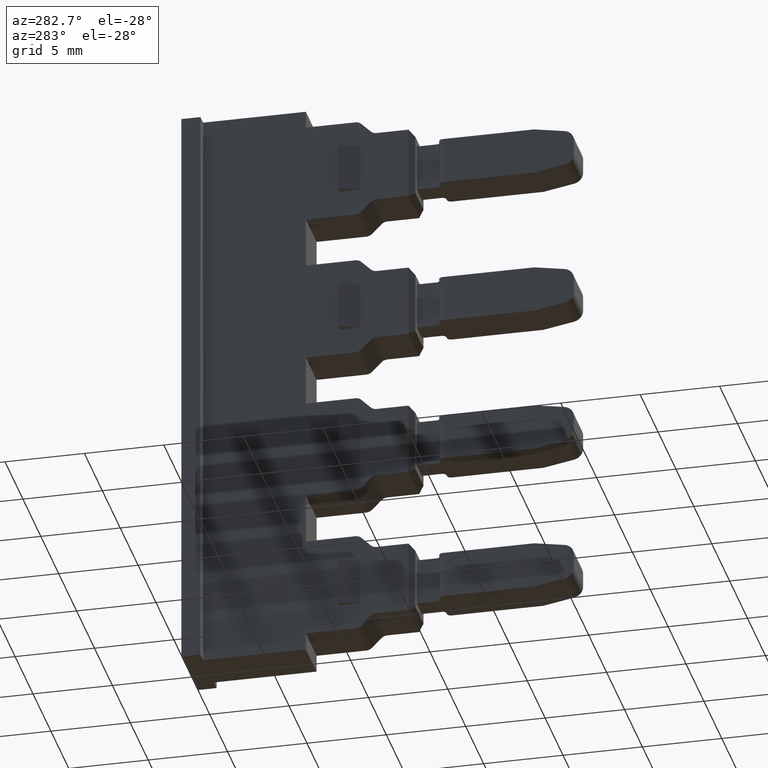
[diagram: clean part render]
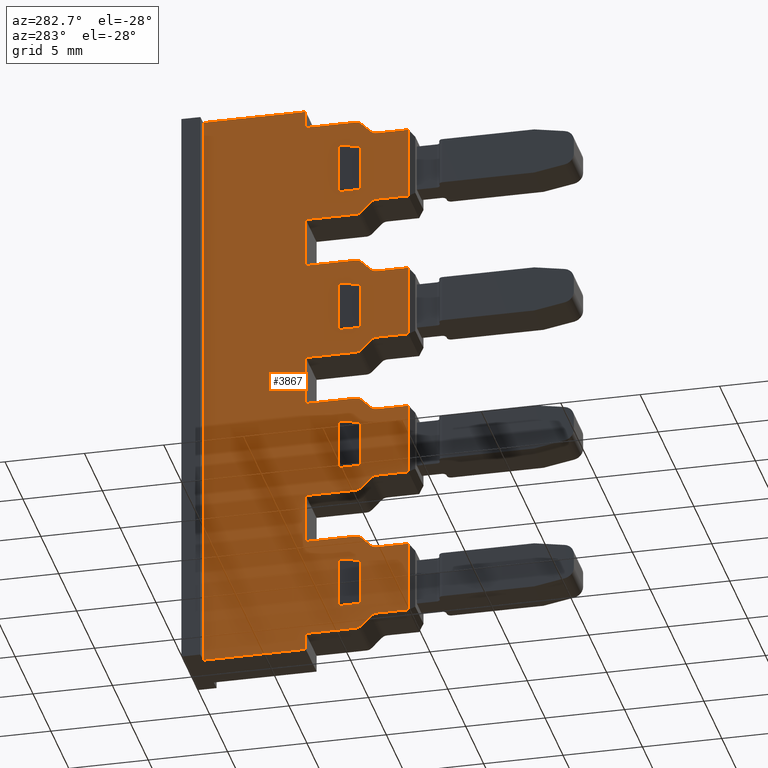
[diagram: same view with one face highlighted and labeled with its STEP entity id]
A machine part, auxiliary view. The second image highlights one B-rep face of the part: STEP entity #3867.
In plain terms, the highlighted planar face has unit normal (1, 0, 0).
Its self-contained STEP definition (entity closure, byte-faithful):
#417 = ORIENTED_EDGE ( 'NONE', *, *, #3866, .F. ) ;
#446 = ORIENTED_EDGE ( 'NONE', *, *, #3864, .F. ) ;
#459 = ORIENTED_EDGE ( 'NONE', *, *, #3886, .F. ) ;
#462 = ORIENTED_EDGE ( 'NONE', *, *, #3850, .F. ) ;
#465 = ORIENTED_EDGE ( 'NONE', *, *, #3891, .T. ) ;
#467 = ORIENTED_EDGE ( 'NONE', *, *, #3387, .T. ) ;
#468 = ORIENTED_EDGE ( 'NONE', *, *, #3436, .F. ) ;
#469 = ORIENTED_EDGE ( 'NONE', *, *, #3462, .F. ) ;
#470 = ORIENTED_EDGE ( 'NONE', *, *, #3375, .T. ) ;
#471 = ORIENTED_EDGE ( 'NONE', *, *, #3848, .F. ) ;
#472 = ORIENTED_EDGE ( 'NONE', *, *, #3391, .T. ) ;
#473 = ORIENTED_EDGE ( 'NONE', *, *, #3461, .T. ) ;
#474 = ORIENTED_EDGE ( 'NONE', *, *, #3402, .F. ) ;
#476 = EDGE_LOOP ( 'NONE', ( #459, #417, #446, #462, #465, #2296, #2274, #2318, #2285, #2319, #2303, #2314, #471, #2304, #2298, #2280, #473, #2321, #2329, #2309, #2326, #468, #2289, #2312, #2306, #2302, #2316, #2272, #2308, #2286, #2269, #474, #2291, #2287, #2324, #2275, #2284, #2278, #2323, #2297, #2295, #2282, #2313, #2320, #2270, #2307, #2283, #2330, #2328, #2281, #2290, #2325 ) ) ;
#479 = EDGE_LOOP ( 'NONE', ( #2310, #2315, #2271, #2288 ) ) ;
#489 = EDGE_LOOP ( 'NONE', ( #2276, #2311, #467, #2305 ) ) ;
#492 = EDGE_LOOP ( 'NONE', ( #2292, #2322, #472, #469 ) ) ;
#497 = EDGE_LOOP ( 'NONE', ( #2317, #2327, #470, #2273 ) ) ;
#1468 = VERTEX_POINT ( 'NONE', #1832 ) ;
#1476 = VERTEX_POINT ( 'NONE', #1799 ) ;
#1478 = VERTEX_POINT ( 'NONE', #1795 ) ;
#1517 = VERTEX_POINT ( 'NONE', #1903 ) ;
#1518 = VERTEX_POINT ( 'NONE', #1873 ) ;
#1521 = VERTEX_POINT ( 'NONE', #1883 ) ;
#1522 = VERTEX_POINT ( 'NONE', #1846 ) ;
#1523 = VERTEX_POINT ( 'NONE', #1847 ) ;
#1524 = VERTEX_POINT ( 'NONE', #1855 ) ;
#1526 = VERTEX_POINT ( 'NONE', #1896 ) ;
#1527 = VERTEX_POINT ( 'NONE', #1851 ) ;
#1528 = VERTEX_POINT ( 'NONE', #1854 ) ;
#1529 = VERTEX_POINT ( 'NONE', #1861 ) ;
#1533 = VERTEX_POINT ( 'NONE', #1862 ) ;
#1534 = VERTEX_POINT ( 'NONE', #1863 ) ;
#1535 = VERTEX_POINT ( 'NONE', #1864 ) ;
#1536 = VERTEX_POINT ( 'NONE', #1859 ) ;
#1537 = VERTEX_POINT ( 'NONE', #1886 ) ;
#1541 = VERTEX_POINT ( 'NONE', #1865 ) ;
#1542 = VERTEX_POINT ( 'NONE', #1844 ) ;
#1544 = VERTEX_POINT ( 'NONE', #1890 ) ;
#1547 = VERTEX_POINT ( 'NONE', #1867 ) ;
#1549 = VERTEX_POINT ( 'NONE', #1887 ) ;
#1552 = VERTEX_POINT ( 'NONE', #1853 ) ;
#1554 = VERTEX_POINT ( 'NONE', #1895 ) ;
#1555 = VERTEX_POINT ( 'NONE', #1892 ) ;
#1557 = VERTEX_POINT ( 'NONE', #1857 ) ;
#1560 = VERTEX_POINT ( 'NONE', #1870 ) ;
#1561 = VERTEX_POINT ( 'NONE', #1904 ) ;
#1562 = VERTEX_POINT ( 'NONE', #1889 ) ;
#1567 = VERTEX_POINT ( 'NONE', #1893 ) ;
#1568 = VERTEX_POINT ( 'NONE', #1876 ) ;
#1572 = VERTEX_POINT ( 'NONE', #1897 ) ;
#1574 = VERTEX_POINT ( 'NONE', #1860 ) ;
#1575 = VERTEX_POINT ( 'NONE', #1877 ) ;
#1576 = VERTEX_POINT ( 'NONE', #1878 ) ;
#1577 = VERTEX_POINT ( 'NONE', #1901 ) ;
#1578 = VERTEX_POINT ( 'NONE', #1841 ) ;
#1584 = VERTEX_POINT ( 'NONE', #1939 ) ;
#1585 = VERTEX_POINT ( 'NONE', #1961 ) ;
#1589 = VERTEX_POINT ( 'NONE', #1940 ) ;
#1593 = VERTEX_POINT ( 'NONE', #1908 ) ;
#1595 = VERTEX_POINT ( 'NONE', #1929 ) ;
#1596 = VERTEX_POINT ( 'NONE', #1950 ) ;
#1597 = VERTEX_POINT ( 'NONE', #1928 ) ;
#1598 = VERTEX_POINT ( 'NONE', #1925 ) ;
#1599 = VERTEX_POINT ( 'NONE', #1920 ) ;
#1600 = VERTEX_POINT ( 'NONE', #1934 ) ;
#1601 = VERTEX_POINT ( 'NONE', #1913 ) ;
#1603 = VERTEX_POINT ( 'NONE', #1957 ) ;
#1607 = VERTEX_POINT ( 'NONE', #1935 ) ;
#1608 = VERTEX_POINT ( 'NONE', #1968 ) ;
#1609 = VERTEX_POINT ( 'NONE', #1953 ) ;
#1612 = VERTEX_POINT ( 'NONE', #1914 ) ;
#1613 = VERTEX_POINT ( 'NONE', #1943 ) ;
#1614 = VERTEX_POINT ( 'NONE', #1949 ) ;
#1615 = VERTEX_POINT ( 'NONE', #1936 ) ;
#1621 = VERTEX_POINT ( 'NONE', #1922 ) ;
#1624 = VERTEX_POINT ( 'NONE', #1941 ) ;
#1625 = VERTEX_POINT ( 'NONE', #1916 ) ;
#1626 = VERTEX_POINT ( 'NONE', #1952 ) ;
#1627 = VERTEX_POINT ( 'NONE', #1911 ) ;
#1630 = VERTEX_POINT ( 'NONE', #1965 ) ;
#1632 = VERTEX_POINT ( 'NONE', #1966 ) ;
#1635 = VERTEX_POINT ( 'NONE', #1926 ) ;
#1637 = VERTEX_POINT ( 'NONE', #1921 ) ;
#1638 = VERTEX_POINT ( 'NONE', #1933 ) ;
#1641 = VERTEX_POINT ( 'NONE', #1947 ) ;
#1795 = CARTESIAN_POINT ( 'NONE',  ( 109.2279176201151900, 242.6435672046340000, 38.30663662139569700 ) ) ;
#1799 = CARTESIAN_POINT ( 'NONE',  ( 109.2279176201152500, 249.1101602475988600, 18.00663662139567500 ) ) ;
#1832 = CARTESIAN_POINT ( 'NONE',  ( 109.2279176201152900, 242.6435672046341100, 25.50663662139554300 ) ) ;
#1841 = CARTESIAN_POINT ( 'NONE',  ( 109.2279176201151600, 239.5101602475982400, 54.30663662139580300 ) ) ;
#1844 = CARTESIAN_POINT ( 'NONE',  ( 109.2279176201153300, 239.5101602475985800, 28.70663662139571300 ) ) ;
#1846 = CARTESIAN_POINT ( 'NONE',  ( 109.2279176201152100, 239.1566068570052200, 48.05308323080263500 ) ) ;
#1847 = CARTESIAN_POINT ( 'NONE',  ( 109.2279176201153800, 238.5495000758188300, 24.75308323080238200 ) ) ;
#1851 = CARTESIAN_POINT ( 'NONE',  ( 109.2279176201152800, 239.2101602475978300, 40.00663662139501800 ) ) ;
#1853 = CARTESIAN_POINT ( 'NONE',  ( 109.2279176201153600, 238.5495000758190000, 29.46019001198884600 ) ) ;
#1854 = CARTESIAN_POINT ( 'NONE',  ( 109.2279176201154300, 236.1815789079984100, 24.60663662139568300 ) ) ;
#1855 = CARTESIAN_POINT ( 'NONE',  ( 109.2279176201153500, 239.1566068570052700, 28.85308323080246900 ) ) ;
#1857 = CARTESIAN_POINT ( 'NONE',  ( 109.2279176201152900, 239.5101602475982900, 35.10663662139557300 ) ) ;
#1859 = CARTESIAN_POINT ( 'NONE',  ( 109.2279176201150800, 242.6435672046339700, 54.30663662139581000 ) ) ;
#1860 = CARTESIAN_POINT ( 'NONE',  ( 109.2279176201153300, 239.2101602475987600, 33.40663662139502300 ) ) ;
#1861 = CARTESIAN_POINT ( 'NONE',  ( 109.2279176201152800, 238.1959466852255800, 43.80663662139576100 ) ) ;
#1862 = CARTESIAN_POINT ( 'NONE',  ( 109.2279176201154100, 238.1959466852256900, 24.60663662139576500 ) ) ;
#1863 = CARTESIAN_POINT ( 'NONE',  ( 109.2279176201152900, 239.1566068570052400, 34.96019001198884300 ) ) ;
#1864 = CARTESIAN_POINT ( 'NONE',  ( 109.2279176201151600, 240.5101602475986600, 49.60663662139501200 ) ) ;
#1865 = CARTESIAN_POINT ( 'NONE',  ( 109.2279176201153300, 238.1959466852256400, 34.20663662139576600 ) ) ;
#1867 = CARTESIAN_POINT ( 'NONE',  ( 109.2279176201153100, 238.5495000758189400, 39.06019001198884400 ) ) ;
#1870 = CARTESIAN_POINT ( 'NONE',  ( 109.2279176201151200, 242.6435672046340000, 47.90663662139586200 ) ) ;
#1873 = CARTESIAN_POINT ( 'NONE',  ( 109.2279176201149700, 249.1101602475987400, 55.40663662139576200 ) ) ;
#1876 = CARTESIAN_POINT ( 'NONE',  ( 109.2279176201153300, 236.1815789079985000, 39.20663662139569500 ) ) ;
#1877 = CARTESIAN_POINT ( 'NONE',  ( 109.2279176201153200, 238.1959466852256400, 39.20663662139563900 ) ) ;
#1878 = CARTESIAN_POINT ( 'NONE',  ( 109.2279176201152400, 240.5101602475986900, 40.00663662139501800 ) ) ;
#1883 = CARTESIAN_POINT ( 'NONE',  ( 109.2279176201154200, 239.1566068570053300, 19.25308323080246700 ) ) ;
#1886 = CARTESIAN_POINT ( 'NONE',  ( 109.2279176201153200, 238.5495000758187700, 34.35308323080238300 ) ) ;
#1887 = CARTESIAN_POINT ( 'NONE',  ( 109.2279176201152600, 242.6435672046340500, 28.70663662139569900 ) ) ;
#1889 = CARTESIAN_POINT ( 'NONE',  ( 109.2279176201151900, 238.1959466852255200, 53.40663662139598200 ) ) ;
#1890 = CARTESIAN_POINT ( 'NONE',  ( 109.2279176201153800, 238.1959466852256900, 29.60663662139564100 ) ) ;
#1892 = CARTESIAN_POINT ( 'NONE',  ( 109.2279176201153600, 236.1815789079983600, 34.20663662139568100 ) ) ;
#1893 = CARTESIAN_POINT ( 'NONE',  ( 109.2279176201154100, 236.1815789079985600, 29.60663662139569800 ) ) ;
#1895 = CARTESIAN_POINT ( 'NONE',  ( 109.2279176201152800, 239.5101602475985200, 38.30663662139571100 ) ) ;
#1896 = CARTESIAN_POINT ( 'NONE',  ( 109.2279176201150800, 240.5101602475987500, 33.40663662139502300 ) ) ;
#1897 = CARTESIAN_POINT ( 'NONE',  ( 109.2279176201152100, 239.2101602475978800, 49.60663662139501200 ) ) ;
#1901 = CARTESIAN_POINT ( 'NONE',  ( 109.2279176201152500, 238.5495000758187100, 43.95308323080237800 ) ) ;
#1903 = CARTESIAN_POINT ( 'NONE',  ( 109.2279176201152900, 239.1566068570052200, 38.45308323080247000 ) ) ;
#1904 = CARTESIAN_POINT ( 'NONE',  ( 109.2279176201152200, 242.6435672046340500, 35.10663662139554500 ) ) ;
#1908 = CARTESIAN_POINT ( 'NONE',  ( 109.2279176201152600, 239.2101602475987100, 43.00663662139501800 ) ) ;
#1911 = CARTESIAN_POINT ( 'NONE',  ( 109.2279176201153500, 239.1566068570053000, 25.36019001198884100 ) ) ;
#1913 = CARTESIAN_POINT ( 'NONE',  ( 109.2279176201153900, 239.2101602475988200, 23.80663662139502200 ) ) ;
#1914 = CARTESIAN_POINT ( 'NONE',  ( 109.2279176201152400, 238.1959466852255800, 48.80663662139584600 ) ) ;
#1916 = CARTESIAN_POINT ( 'NONE',  ( 109.2279176201151900, 238.5495000758186000, 53.55308323080258500 ) ) ;
#1920 = CARTESIAN_POINT ( 'NONE',  ( 109.2279176201154300, 238.5495000758190500, 19.86019001198884500 ) ) ;
#1921 = CARTESIAN_POINT ( 'NONE',  ( 109.2279176201153600, 240.5101602475988000, 20.80663662139501800 ) ) ;
#1922 = CARTESIAN_POINT ( 'NONE',  ( 109.2279176201149700, 240.5101602475986600, 52.60663662139501900 ) ) ;
#1925 = CARTESIAN_POINT ( 'NONE',  ( 109.2279176201151500, 242.6435672046340000, 44.70663662139553900 ) ) ;
#1926 = CARTESIAN_POINT ( 'NONE',  ( 109.2279176201153300, 242.6435672046341100, 19.10663662139569800 ) ) ;
#1928 = CARTESIAN_POINT ( 'NONE',  ( 109.2279176201153100, 240.5101602475987500, 30.40663662139502000 ) ) ;
#1929 = CARTESIAN_POINT ( 'NONE',  ( 109.2279176201151900, 239.2101602475986800, 52.60663662139501900 ) ) ;
#1933 = CARTESIAN_POINT ( 'NONE',  ( 109.2279176201153500, 239.5101602475983500, 25.50663662139556800 ) ) ;
#1934 = CARTESIAN_POINT ( 'NONE',  ( 109.2279176201151500, 240.5101602475988000, 23.80663662139502200 ) ) ;
#1935 = CARTESIAN_POINT ( 'NONE',  ( 109.2279176201154500, 238.1959466852257500, 20.00663662139564300 ) ) ;
#1936 = CARTESIAN_POINT ( 'NONE',  ( 109.2279176201152400, 236.1815789079983900, 53.40663662139587600 ) ) ;
#1939 = CARTESIAN_POINT ( 'NONE',  ( 109.2279176201150100, 240.5101602475986900, 43.00663662139501800 ) ) ;
#1940 = CARTESIAN_POINT ( 'NONE',  ( 109.2279176201150400, 242.6435672046339400, 55.40663662139576900 ) ) ;
#1941 = CARTESIAN_POINT ( 'NONE',  ( 109.2279176201153300, 239.2101602475978800, 30.40663662139502000 ) ) ;
#1943 = CARTESIAN_POINT ( 'NONE',  ( 109.2279176201154100, 239.5101602475986300, 19.10663662139571200 ) ) ;
#1947 = CARTESIAN_POINT ( 'NONE',  ( 109.2279176201151600, 239.1566068570052400, 54.16019001198902300 ) ) ;
#1949 = CARTESIAN_POINT ( 'NONE',  ( 109.2279176201154800, 236.1815789079986100, 20.00663662139569600 ) ) ;
#1950 = CARTESIAN_POINT ( 'NONE',  ( 109.2279176201152200, 239.5101602475982400, 44.70663662139556700 ) ) ;
#1952 = CARTESIAN_POINT ( 'NONE',  ( 109.2279176201153300, 242.6435672046340800, 18.00663662139566100 ) ) ;
#1953 = CARTESIAN_POINT ( 'NONE',  ( 109.2279176201151900, 239.5101602475985200, 47.90663662139586900 ) ) ;
#1957 = CARTESIAN_POINT ( 'NONE',  ( 109.2279176201153100, 236.1815789079983000, 43.80663662139568300 ) ) ;
#1961 = CARTESIAN_POINT ( 'NONE',  ( 109.2279176201152800, 236.1815789079985600, 48.80663662139583900 ) ) ;
#1965 = CARTESIAN_POINT ( 'NONE',  ( 109.2279176201152200, 239.1566068570051900, 44.56019001198883700 ) ) ;
#1966 = CARTESIAN_POINT ( 'NONE',  ( 109.2279176201152100, 238.5495000758188800, 48.66019001198909400 ) ) ;
#1968 = CARTESIAN_POINT ( 'NONE',  ( 109.2279176201154100, 239.2101602475979400, 20.80663662139501800 ) ) ;
#2053 = DIRECTION ( 'NONE',  ( 8.817334340313143600E-042, -3.335281029530763600E-028, -1.000000000000000000 ) ) ;
#2059 = LINE ( 'NONE', #2090, #5739 ) ;
#2060 = LINE ( 'NONE', #2072, #5733 ) ;
#2072 = CARTESIAN_POINT ( 'NONE',  ( 109.2279176201153200, 242.6435672046340500, 19.10663662139552300 ) ) ;
#2073 = LINE ( 'NONE', #2115, #5729 ) ;
#2077 = LINE ( 'NONE', #2080, #5740 ) ;
#2080 = CARTESIAN_POINT ( 'NONE',  ( 109.2279176201150500, 242.6435672046339400, 55.40663662139560600 ) ) ;
#2081 = LINE ( 'NONE', #2118, #5728 ) ;
#2089 = DIRECTION ( 'NONE',  ( 0.0000000000000000000, 0.0000000000000000000, 1.000000000000000000 ) ) ;
#2090 = CARTESIAN_POINT ( 'NONE',  ( 109.2279176201149700, 240.5101602475986600, 49.60663662139501200 ) ) ;
#2093 = DIRECTION ( 'NONE',  ( -2.775557561563659400E-014, 1.000000000000000000, 0.0000000000000000000 ) ) ;
#2094 = DIRECTION ( 'NONE',  ( 1.000000000000000000, 2.643655590711540000E-014, 7.193572994224081300E-015 ) ) ;
#2095 = LINE ( 'NONE', #2127, #5750 ) ;
#2096 = LINE ( 'NONE', #2128, #5736 ) ;
#2097 = LINE ( 'NONE', #2121, #5730 ) ;
#2099 = LINE ( 'NONE', #2100, #5783 ) ;
#2100 = CARTESIAN_POINT ( 'NONE',  ( 109.2279176201151500, 240.5101602475988000, 20.80663662139501800 ) ) ;
#2102 = DIRECTION ( 'NONE',  ( -2.643655590711540000E-014, 1.000000000000000000, 0.0000000000000000000 ) ) ;
#2103 = CARTESIAN_POINT ( 'NONE',  ( 109.2279176201152600, 239.5101602475985200, 38.80663662139573200 ) ) ;
#2104 = DIRECTION ( 'NONE',  ( 0.0000000000000000000, -0.7071067811866363900, -0.7071067811864587500 ) ) ;
#2105 = DIRECTION ( 'NONE',  ( 0.0000000000000000000, -0.0000000000000000000, -1.000000000000000000 ) ) ;
#2106 = DIRECTION ( 'NONE',  ( -2.775557561562580900E-014, 1.000000000000000000, 0.0000000000000000000 ) ) ;
#2107 = DIRECTION ( 'NONE',  ( 1.000000000000000000, 2.643655590711540000E-014, 7.193572994224081300E-015 ) ) ;
#2108 = CARTESIAN_POINT ( 'NONE',  ( 109.2279176201154500, 238.1959466852257200, 19.50663662139552900 ) ) ;
#2111 = DIRECTION ( 'NONE',  ( -2.775557561562580900E-014, 1.000000000000000000, 0.0000000000000000000 ) ) ;
#2112 = CARTESIAN_POINT ( 'NONE',  ( 109.2279176201149700, 240.5101602475986600, 52.60663662139501900 ) ) ;
#2113 = DIRECTION ( 'NONE',  ( 1.000000000000000000, 2.643655590711540000E-014, 7.193572994224081300E-015 ) ) ;
#2115 = CARTESIAN_POINT ( 'NONE',  ( 109.2279176201152100, 238.5495000758186600, 48.66019001198931400 ) ) ;
#2116 = DIRECTION ( 'NONE',  ( -2.775557561562734800E-014, 1.000000000000000000, 0.0000000000000000000 ) ) ;
#2117 = CARTESIAN_POINT ( 'NONE',  ( 109.2279176201152200, 238.1959466852255500, 48.30663662139579600 ) ) ;
#2118 = CARTESIAN_POINT ( 'NONE',  ( 109.2279176201151600, 239.5101602475984900, 54.30663662139580300 ) ) ;
#2119 = DIRECTION ( 'NONE',  ( 0.0000000000000000000, 0.7071067811864788500, -0.7071067811866163000 ) ) ;
#2120 = LINE ( 'NONE', #2140, #5792 ) ;
#2121 = CARTESIAN_POINT ( 'NONE',  ( 109.2279176201154100, 239.5101602475986100, 19.10663662139571200 ) ) ;
#2123 = LINE ( 'NONE', #2133, #5747 ) ;
#2124 = CARTESIAN_POINT ( 'NONE',  ( 109.2279176201151900, 238.1959466852254900, 53.90663662139584700 ) ) ;
#2125 = DIRECTION ( 'NONE',  ( 0.0000000000000000000, 0.0000000000000000000, 1.000000000000000000 ) ) ;
#2126 = DIRECTION ( 'NONE',  ( 1.000000000000000000, 2.643655590711540000E-014, 7.193572994224081300E-015 ) ) ;
#2127 = CARTESIAN_POINT ( 'NONE',  ( 109.2279176201150800, 240.5101602475987500, 30.40663662139502000 ) ) ;
#2128 = CARTESIAN_POINT ( 'NONE',  ( 109.2279176201151500, 239.1566068570049000, 54.16019001198871100 ) ) ;
#2130 = DIRECTION ( 'NONE',  ( 0.0000000000000000000, 0.0000000000000000000, 1.000000000000000000 ) ) ;
#2131 = DIRECTION ( 'NONE',  ( -0.0000000000000000000, 1.000000000000000000, -0.0000000000000000000 ) ) ;
#2132 = LINE ( 'NONE', #2112, #5752 ) ;
#2133 = CARTESIAN_POINT ( 'NONE',  ( 109.2279176201150100, 239.2101602475987100, 40.00663662139501800 ) ) ;
#2134 = LINE ( 'NONE', #2171, #5795 ) ;
#2135 = DIRECTION ( 'NONE',  ( 0.0000000000000000000, 0.0000000000000000000, 1.000000000000000000 ) ) ;
#2137 = DIRECTION ( 'NONE',  ( 2.643655590711540000E-014, -1.000000000000000000, -0.0000000000000000000 ) ) ;
#2138 = DIRECTION ( 'NONE',  ( 2.643655590711540000E-014, -1.000000000000000000, -0.0000000000000000000 ) ) ;
#2139 = LINE ( 'NONE', #2174, #5760 ) ;
#2140 = CARTESIAN_POINT ( 'NONE',  ( 109.2279176201152400, 239.5101602475984900, 43.80663662139576100 ) ) ;
#2141 = LINE ( 'NONE', #2169, #5762 ) ;
#2142 = CARTESIAN_POINT ( 'NONE',  ( 109.2279176201152800, 239.5101602475984900, 38.30663662139571100 ) ) ;
#2143 = DIRECTION ( 'NONE',  ( -2.643655590711540000E-014, 1.000000000000000000, 0.0000000000000000000 ) ) ;
#2144 = DIRECTION ( 'NONE',  ( -2.643655590711540000E-014, 1.000000000000000000, 0.0000000000000000000 ) ) ;
#2145 = DIRECTION ( 'NONE',  ( -2.775557561563197100E-014, 1.000000000000000000, 0.0000000000000000000 ) ) ;
#2146 = LINE ( 'NONE', #2173, #5794 ) ;
#2147 = LINE ( 'NONE', #2172, #5796 ) ;
#2148 = CARTESIAN_POINT ( 'NONE',  ( 109.2279176201151600, 239.5101602475984900, 53.40663662139598200 ) ) ;
#2149 = DIRECTION ( 'NONE',  ( 2.643655590711540000E-014, -1.000000000000000000, -0.0000000000000000000 ) ) ;
#2154 = DIRECTION ( 'NONE',  ( 1.000000000000000000, 2.643655590711540000E-014, 7.193572994224081300E-015 ) ) ;
#2156 = DIRECTION ( 'NONE',  ( -0.0000000000000000000, 1.000000000000000000, -0.0000000000000000000 ) ) ;
#2157 = DIRECTION ( 'NONE',  ( 0.0000000000000000000, 0.0000000000000000000, 1.000000000000000000 ) ) ;
#2158 = DIRECTION ( 'NONE',  ( -0.0000000000000000000, 1.000000000000000000, -0.0000000000000000000 ) ) ;
#2159 = CARTESIAN_POINT ( 'NONE',  ( 109.2279176201152200, 239.5101602475985200, 44.20663662139570200 ) ) ;
#2163 = DIRECTION ( 'NONE',  ( 7.193572994224081300E-015, 1.901732946337204600E-028, -1.000000000000000000 ) ) ;
#2164 = LINE ( 'NONE', #2142, #5793 ) ;
#2165 = DIRECTION ( 'NONE',  ( 7.193572994224081300E-015, 1.901732946337204600E-028, -1.000000000000000000 ) ) ;
#2166 = LINE ( 'NONE', #2167, #5782 ) ;
#2167 = CARTESIAN_POINT ( 'NONE',  ( 109.2279176201150800, 240.5101602475987500, 30.40663662139502000 ) ) ;
#2169 = CARTESIAN_POINT ( 'NONE',  ( 109.2279176201154200, 239.5101602475986100, 18.00663662139556500 ) ) ;
#2171 = CARTESIAN_POINT ( 'NONE',  ( 109.2279176201151900, 242.6435672046340200, 38.70663662139573800 ) ) ;
#2172 = CARTESIAN_POINT ( 'NONE',  ( 109.2279176201153500, 236.1815789079983300, 38.70663662139573800 ) ) ;
#2173 = CARTESIAN_POINT ( 'NONE',  ( 109.2279176201149700, 240.5101602475986600, 49.60663662139501200 ) ) ;
#2174 = CARTESIAN_POINT ( 'NONE',  ( 109.2279176201150100, 240.5101602475986900, 40.00663662139501800 ) ) ;
#2176 = LINE ( 'NONE', #2148, #5774 ) ;
#2179 = CARTESIAN_POINT ( 'NONE',  ( 109.2279176201153500, 236.1815789079982400, 38.70663662139573800 ) ) ;
#2180 = CARTESIAN_POINT ( 'NONE',  ( 109.2279176201154300, 238.5495000758188000, 19.86019001198910100 ) ) ;
#2185 = LINE ( 'NONE', #2242, #5802 ) ;
#2189 = CARTESIAN_POINT ( 'NONE',  ( 109.2279176201152800, 239.5101602475984900, 39.20663662139569500 ) ) ;
#2190 = LINE ( 'NONE', #2189, #5756 ) ;
#2192 = CARTESIAN_POINT ( 'NONE',  ( 109.2279176201153600, 239.5101602475986100, 24.60663662139576500 ) ) ;
#2193 = DIRECTION ( 'NONE',  ( -2.643655590711540000E-014, 1.000000000000000000, 0.0000000000000000000 ) ) ;
#2195 = DIRECTION ( 'NONE',  ( -0.0000000000000000000, 1.000000000000000000, -0.0000000000000000000 ) ) ;
#2196 = CARTESIAN_POINT ( 'NONE',  ( 109.2279176201153900, 239.5101602475986300, 19.60663662139573300 ) ) ;
#2199 = DIRECTION ( 'NONE',  ( 0.0000000000000000000, 0.7071067811864910600, -0.7071067811866040800 ) ) ;
#2200 = CARTESIAN_POINT ( 'NONE',  ( 109.2279176201150100, 240.5101602475986900, 40.00663662139501800 ) ) ;
#2206 = LINE ( 'NONE', #2200, #5801 ) ;
#2207 = CARTESIAN_POINT ( 'NONE',  ( 109.2279176201150100, 240.5101602475986900, 43.00663662139501800 ) ) ;
#2210 = DIRECTION ( 'NONE',  ( -0.0000000000000000000, 1.000000000000000000, -0.0000000000000000000 ) ) ;
#2212 = DIRECTION ( 'NONE',  ( 2.643655590711540000E-014, -1.000000000000000000, -0.0000000000000000000 ) ) ;
#2213 = LINE ( 'NONE', #2192, #5757 ) ;
#2214 = DIRECTION ( 'NONE',  ( -2.775557561562734800E-014, 1.000000000000000000, 0.0000000000000000000 ) ) ;
#2215 = DIRECTION ( 'NONE',  ( 7.193572994224081300E-015, 1.901732946337204600E-028, -1.000000000000000000 ) ) ;
#2217 = DIRECTION ( 'NONE',  ( 1.000000000000000000, 2.643655590711540000E-014, 7.193572994224081300E-015 ) ) ;
#2218 = LINE ( 'NONE', #2179, #5767 ) ;
#2219 = LINE ( 'NONE', #2238, #5769 ) ;
#2224 = LINE ( 'NONE', #2207, #5768 ) ;
#2225 = LINE ( 'NONE', #2261, #5753 ) ;
#2226 = LINE ( 'NONE', #2180, #5766 ) ;
#2228 = CARTESIAN_POINT ( 'NONE',  ( 109.2279176201150800, 240.5101602475987500, 33.40663662139502300 ) ) ;
#2233 = LINE ( 'NONE', #2266, #5812 ) ;
#2234 = DIRECTION ( 'NONE',  ( -2.643655590711540000E-014, 1.000000000000000000, 0.0000000000000000000 ) ) ;
#2235 = LINE ( 'NONE', #2236, #5846 ) ;
#2236 = CARTESIAN_POINT ( 'NONE',  ( 109.2279176201152200, 239.1566068570049000, 44.56019001198853900 ) ) ;
#2238 = CARTESIAN_POINT ( 'NONE',  ( 109.2279176201152100, 239.5101602475984900, 48.80663662139584600 ) ) ;
#2239 = DIRECTION ( 'NONE',  ( 0.0000000000000000000, -0.7071067811865717800, -0.7071067811865232600 ) ) ;
#2241 = DIRECTION ( 'NONE',  ( -2.643655590711540000E-014, 1.000000000000000000, 0.0000000000000000000 ) ) ;
#2242 = CARTESIAN_POINT ( 'NONE',  ( 109.2279176201152100, 239.5101602475984900, 47.90663662139587600 ) ) ;
#2243 = CARTESIAN_POINT ( 'NONE',  ( 109.2279176201152600, 238.1959466852255500, 44.30663662139569000 ) ) ;
#2244 = DIRECTION ( 'NONE',  ( 1.000000000000000000, 2.643655590711540000E-014, 7.193572994224081300E-015 ) ) ;
#2245 = DIRECTION ( 'NONE',  ( -2.775557561563351100E-014, 1.000000000000000000, 0.0000000000000000000 ) ) ;
#2246 = LINE ( 'NONE', #2228, #5781 ) ;
#2247 = DIRECTION ( 'NONE',  ( 0.0000000000000000000, 0.7071067811864910600, -0.7071067811866040800 ) ) ;
#2248 = DIRECTION ( 'NONE',  ( -0.0000000000000000000, 1.000000000000000000, -0.0000000000000000000 ) ) ;
#2254 = DIRECTION ( 'NONE',  ( 0.0000000000000000000, -0.7071067811865717800, -0.7071067811865232600 ) ) ;
#2259 = LINE ( 'NONE', #2262, #5839 ) ;
#2261 = CARTESIAN_POINT ( 'NONE',  ( 109.2279176201153100, 238.5495000758186800, 39.06019001198910000 ) ) ;
#2262 = CARTESIAN_POINT ( 'NONE',  ( 109.2279176201154100, 239.5101602475986100, 20.00663662139569600 ) ) ;
#2264 = DIRECTION ( 'NONE',  ( -2.643655590711540000E-014, 1.000000000000000000, 0.0000000000000000000 ) ) ;
#2266 = CARTESIAN_POINT ( 'NONE',  ( 109.2279176201153500, 239.1566068570050200, 25.36019001198854300 ) ) ;
#2269 = ORIENTED_EDGE ( 'NONE', *, *, #3401, .F. ) ;
#2270 = ORIENTED_EDGE ( 'NONE', *, *, #3380, .T. ) ;
#2271 = ORIENTED_EDGE ( 'NONE', *, *, #3395, .T. ) ;
#2272 = ORIENTED_EDGE ( 'NONE', *, *, #3379, .F. ) ;
#2273 = ORIENTED_EDGE ( 'NONE', *, *, #3389, .F. ) ;
#2274 = ORIENTED_EDGE ( 'NONE', *, *, #3877, .F. ) ;
#2275 = ORIENTED_EDGE ( 'NONE', *, *, #3378, .F. ) ;
#2276 = ORIENTED_EDGE ( 'NONE', *, *, #3445, .F. ) ;
#2278 = ORIENTED_EDGE ( 'NONE', *, *, #3448, .F. ) ;
#2280 = ORIENTED_EDGE ( 'NONE', *, *, #3424, .F. ) ;
#2281 = ORIENTED_EDGE ( 'NONE', *, *, #3433, .F. ) ;
#2282 = ORIENTED_EDGE ( 'NONE', *, *, #3382, .F. ) ;
#2283 = ORIENTED_EDGE ( 'NONE', *, *, #3458, .F. ) ;
#2284 = ORIENTED_EDGE ( 'NONE', *, *, #3376, .F. ) ;
#2285 = ORIENTED_EDGE ( 'NONE', *, *, #3849, .T. ) ;
#2286 = ORIENTED_EDGE ( 'NONE', *, *, #3422, .F. ) ;
#2287 = ORIENTED_EDGE ( 'NONE', *, *, #3383, .F. ) ;
#2288 = ORIENTED_EDGE ( 'NONE', *, *, #3417, .F. ) ;
#2289 = ORIENTED_EDGE ( 'NONE', *, *, #3397, .F. ) ;
#2290 = ORIENTED_EDGE ( 'NONE', *, *, #3457, .F. ) ;
#2291 = ORIENTED_EDGE ( 'NONE', *, *, #3381, .T. ) ;
#2292 = ORIENTED_EDGE ( 'NONE', *, *, #3459, .F. ) ;
#2295 = ORIENTED_EDGE ( 'NONE', *, *, #3377, .F. ) ;
#2296 = ORIENTED_EDGE ( 'NONE', *, *, #3861, .F. ) ;
#2297 = ORIENTED_EDGE ( 'NONE', *, *, #3399, .F. ) ;
#2298 = ORIENTED_EDGE ( 'NONE', *, *, #3384, .F. ) ;
#2302 = ORIENTED_EDGE ( 'NONE', *, *, #3423, .F. ) ;
#2303 = ORIENTED_EDGE ( 'NONE', *, *, #3856, .F. ) ;
#2304 = ORIENTED_EDGE ( 'NONE', *, *, #3400, .F. ) ;
#2305 = ORIENTED_EDGE ( 'NONE', *, *, #3427, .F. ) ;
#2306 = ORIENTED_EDGE ( 'NONE', *, *, #3394, .F. ) ;
#2307 = ORIENTED_EDGE ( 'NONE', *, *, #3435, .F. ) ;
#2308 = ORIENTED_EDGE ( 'NONE', *, *, #3385, .T. ) ;
#2309 = ORIENTED_EDGE ( 'NONE', *, *, #3393, .F. ) ;
#2310 = ORIENTED_EDGE ( 'NONE', *, *, #3390, .F. ) ;
#2311 = ORIENTED_EDGE ( 'NONE', *, *, #3405, .T. ) ;
#2312 = ORIENTED_EDGE ( 'NONE', *, *, #3456, .F. ) ;
#2313 = ORIENTED_EDGE ( 'NONE', *, *, #3409, .F. ) ;
#2314 = ORIENTED_EDGE ( 'NONE', *, *, #3896, .F. ) ;
#2315 = ORIENTED_EDGE ( 'NONE', *, *, #3414, .T. ) ;
#2316 = ORIENTED_EDGE ( 'NONE', *, *, #3447, .F. ) ;
#2317 = ORIENTED_EDGE ( 'NONE', *, *, #3438, .F. ) ;
#2318 = ORIENTED_EDGE ( 'NONE', *, *, #3876, .F. ) ;
#2319 = ORIENTED_EDGE ( 'NONE', *, *, #3880, .F. ) ;
#2320 = ORIENTED_EDGE ( 'NONE', *, *, #3412, .F. ) ;
#2321 = ORIENTED_EDGE ( 'NONE', *, *, #3421, .F. ) ;
#2322 = ORIENTED_EDGE ( 'NONE', *, *, #3443, .T. ) ;
#2323 = ORIENTED_EDGE ( 'NONE', *, *, #3851, .F. ) ;
#2324 = ORIENTED_EDGE ( 'NONE', *, *, #3437, .F. ) ;
#2325 = ORIENTED_EDGE ( 'NONE', *, *, #3442, .F. ) ;
#2326 = ORIENTED_EDGE ( 'NONE', *, *, #3426, .T. ) ;
#2327 = ORIENTED_EDGE ( 'NONE', *, *, #3398, .T. ) ;
#2328 = ORIENTED_EDGE ( 'NONE', *, *, #3444, .T. ) ;
#2329 = ORIENTED_EDGE ( 'NONE', *, *, #3416, .F. ) ;
#2330 = ORIENTED_EDGE ( 'NONE', *, *, #3415, .F. ) ;
#2684 = LINE ( 'NONE', #2692, #5646 ) ;
#2692 = CARTESIAN_POINT ( 'NONE',  ( 109.2279176201153600, 238.5495000758187400, 29.46019001198910200 ) ) ;
#2718 = DIRECTION ( 'NONE',  ( 7.193572994224081300E-015, 1.901732946337204600E-028, -1.000000000000000000 ) ) ;
#2719 = DIRECTION ( 'NONE',  ( 0.0000000000000000000, 0.7071067811864910600, -0.7071067811866040800 ) ) ;
#2721 = DIRECTION ( 'NONE',  ( 1.000000000000000000, 2.643655590711540000E-014, 7.193572994224081300E-015 ) ) ;
#2726 = CARTESIAN_POINT ( 'NONE',  ( 109.2279176201152600, 242.6435672046340800, 29.10663662139574000 ) ) ;
#2727 = DIRECTION ( 'NONE',  ( -2.775557561563197100E-014, 1.000000000000000000, 0.0000000000000000000 ) ) ;
#2732 = CARTESIAN_POINT ( 'NONE',  ( 109.2279176201150900, 249.1101602475988300, 29.10663662139574000 ) ) ;
#2733 = CARTESIAN_POINT ( 'NONE',  ( 109.2279176201153300, 238.1959466852256100, 34.70663662139568800 ) ) ;
#2734 = LINE ( 'NONE', #2726, #5615 ) ;
#2741 = DIRECTION ( 'NONE',  ( -7.193572994224081300E-015, -1.901732946337204600E-028, 1.000000000000000000 ) ) ;
#2744 = DIRECTION ( 'NONE',  ( 1.000000000000000000, 2.643655590711540000E-014, 7.193572994224081300E-015 ) ) ;
#2747 = CARTESIAN_POINT ( 'NONE',  ( 109.2279176201152900, 239.5101602475985800, 34.60663662139570100 ) ) ;
#2749 = LINE ( 'NONE', #2732, #5648 ) ;
#2752 = DIRECTION ( 'NONE',  ( -2.775557561563351100E-014, 1.000000000000000000, 0.0000000000000000000 ) ) ;
#2771 = DIRECTION ( 'NONE',  ( 1.000000000000000000, 2.643655590711540000E-014, 7.193572994224081300E-015 ) ) ;
#2772 = CARTESIAN_POINT ( 'NONE',  ( 109.2279176201153300, 239.5101602475985500, 28.70663662139571300 ) ) ;
#2773 = CARTESIAN_POINT ( 'NONE',  ( 109.2279176201153300, 239.5101602475985800, 29.20663662139573400 ) ) ;
#2774 = FACE_OUTER_BOUND ( 'NONE', #476, .T. ) ;
#2781 = FACE_BOUND ( 'NONE', #497, .T. ) ;
#2782 = DIRECTION ( 'NONE',  ( -2.643655590711540000E-014, 1.000000000000000000, 0.0000000000000000000 ) ) ;
#2783 = LINE ( 'NONE', #2772, #5651 ) ;
#2787 = DIRECTION ( 'NONE',  ( -2.775557561562734800E-014, 1.000000000000000000, 0.0000000000000000000 ) ) ;
#2788 = FACE_BOUND ( 'NONE', #489, .T. ) ;
#2789 = LINE ( 'NONE', #2798, #5636 ) ;
#2791 = FACE_BOUND ( 'NONE', #492, .T. ) ;
#2792 = CARTESIAN_POINT ( 'NONE',  ( 109.2279176201153300, 239.5101602475985500, 29.10663662139574000 ) ) ;
#2793 = DIRECTION ( 'NONE',  ( 1.000000000000000000, 2.643655590711540000E-014, 7.193572994224081300E-015 ) ) ;
#2794 = DIRECTION ( 'NONE',  ( -2.643655590711540000E-014, 1.000000000000000000, 0.0000000000000000000 ) ) ;
#2798 = CARTESIAN_POINT ( 'NONE',  ( 109.2279176201153300, 239.5101602475985500, 29.60663662139569800 ) ) ;
#2799 = DIRECTION ( 'NONE',  ( -2.643655590711540000E-014, 1.000000000000000000, 0.0000000000000000000 ) ) ;
#2801 = PLANE ( 'NONE',  #5628 ) ;
#2802 = FACE_BOUND ( 'NONE', #479, .T. ) ;
#2808 = CARTESIAN_POINT ( 'NONE',  ( 109.2279176201153100, 239.5101602475985500, 34.20663662139576600 ) ) ;
#2819 = LINE ( 'NONE', #2808, #5601 ) ;
#2835 = LINE ( 'NONE', #2838, #5607 ) ;
#2837 = DIRECTION ( 'NONE',  ( 2.643655590711540000E-014, -1.000000000000000000, -0.0000000000000000000 ) ) ;
#2838 = CARTESIAN_POINT ( 'NONE',  ( 109.2279176201154200, 236.1815789079983000, 29.10663662139574000 ) ) ;
#2839 = DIRECTION ( 'NONE',  ( 7.193572994224081300E-015, 1.901732946337204600E-028, -1.000000000000000000 ) ) ;
#2846 = DIRECTION ( 'NONE',  ( 0.0000000000000000000, -0.7071067811865717800, -0.7071067811865232600 ) ) ;
#2849 = CARTESIAN_POINT ( 'NONE',  ( 109.2279176201152900, 239.1566068570049600, 34.96019001198854400 ) ) ;
#2853 = CARTESIAN_POINT ( 'NONE',  ( 109.2279176201152500, 242.6435672046340000, 28.70663662139552500 ) ) ;
#2855 = LINE ( 'NONE', #2849, #5630 ) ;
#2862 = DIRECTION ( 'NONE',  ( 0.0000000000000000000, -0.0000000000000000000, -1.000000000000000000 ) ) ;
#2871 = LINE ( 'NONE', #2853, #5671 ) ;
#2893 = CARTESIAN_POINT ( 'NONE',  ( 109.2279176201153800, 238.1959466852256600, 29.10663662139553100 ) ) ;
#2897 = DIRECTION ( 'NONE',  ( 1.000000000000000000, 2.643655590711540000E-014, 7.193572994224081300E-015 ) ) ;
#2898 = DIRECTION ( 'NONE',  ( 2.643655590711540000E-014, -1.000000000000000000, -0.0000000000000000000 ) ) ;
#2901 = LINE ( 'NONE', #2907, #5661 ) ;
#2907 = CARTESIAN_POINT ( 'NONE',  ( 109.2279176201153100, 239.5101602475985500, 35.10663662139548800 ) ) ;
#2919 = DIRECTION ( 'NONE',  ( -2.775557561562580900E-014, 1.000000000000000000, 0.0000000000000000000 ) ) ;
#3375 = EDGE_CURVE ( 'NONE', #1535, #1621, #2059, .T. ) ;
#3376 = EDGE_CURVE ( 'NONE', #1589, #1536, #2077, .T. ) ;
#3377 = EDGE_CURVE ( 'NONE', #1635, #1626, #2060, .T. ) ;
#3378 = EDGE_CURVE ( 'NONE', #1536, #1578, #2081, .T. ) ;
#3379 = EDGE_CURVE ( 'NONE', #1632, #1522, #2073, .T. ) ;
#3380 = EDGE_CURVE ( 'NONE', #1599, #1607, #5734, .T. ) ;
#3381 = EDGE_CURVE ( 'NONE', #1562, #1625, #5746, .T. ) ;
#3382 = EDGE_CURVE ( 'NONE', #1613, #1635, #2097, .T. ) ;
#3383 = EDGE_CURVE ( 'NONE', #1641, #1625, #2096, .T. ) ;
#3384 = EDGE_CURVE ( 'NONE', #1517, #1554, #5738, .T. ) ;
#3385 = EDGE_CURVE ( 'NONE', #1632, #1612, #5737, .T. ) ;
#3387 = EDGE_CURVE ( 'NONE', #1597, #1526, #2095, .T. ) ;
#3389 = EDGE_CURVE ( 'NONE', #1595, #1621, #2132, .T. ) ;
#3390 = EDGE_CURVE ( 'NONE', #1527, #1593, #2123, .T. ) ;
#3391 = EDGE_CURVE ( 'NONE', #1637, #1600, #2099, .T. ) ;
#3393 = EDGE_CURVE ( 'NONE', #1529, #1603, #2120, .T. ) ;
#3394 = EDGE_CURVE ( 'NONE', #1560, #1598, #2134, .T. ) ;
#3395 = EDGE_CURVE ( 'NONE', #1576, #1584, #2139, .T. ) ;
#3397 = EDGE_CURVE ( 'NONE', #1596, #1630, #5761, .T. ) ;
#3398 = EDGE_CURVE ( 'NONE', #1572, #1535, #2146, .T. ) ;
#3399 = EDGE_CURVE ( 'NONE', #1626, #1476, #2141, .T. ) ;
#3400 = EDGE_CURVE ( 'NONE', #1554, #1478, #2164, .T. ) ;
#3401 = EDGE_CURVE ( 'NONE', #1615, #1585, #2147, .T. ) ;
#3402 = EDGE_CURVE ( 'NONE', #1562, #1615, #2176, .T. ) ;
#3405 = EDGE_CURVE ( 'NONE', #1624, #1597, #2166, .T. ) ;
#3409 = EDGE_CURVE ( 'NONE', #1521, #1613, #5785, .T. ) ;
#3412 = EDGE_CURVE ( 'NONE', #1599, #1521, #2226, .T. ) ;
#3414 = EDGE_CURVE ( 'NONE', #1527, #1576, #2206, .T. ) ;
#3415 = EDGE_CURVE ( 'NONE', #1533, #1528, #2213, .T. ) ;
#3416 = EDGE_CURVE ( 'NONE', #1603, #1568, #2218, .T. ) ;
#3417 = EDGE_CURVE ( 'NONE', #1593, #1584, #2224, .T. ) ;
#3421 = EDGE_CURVE ( 'NONE', #1568, #1575, #2190, .T. ) ;
#3422 = EDGE_CURVE ( 'NONE', #1585, #1612, #2219, .T. ) ;
#3423 = EDGE_CURVE ( 'NONE', #1609, #1560, #2185, .T. ) ;
#3424 = EDGE_CURVE ( 'NONE', #1547, #1517, #2225, .T. ) ;
#3426 = EDGE_CURVE ( 'NONE', #1529, #1577, #5770, .T. ) ;
#3427 = EDGE_CURVE ( 'NONE', #1574, #1526, #2246, .T. ) ;
#3433 = EDGE_CURVE ( 'NONE', #1627, #1523, #2233, .T. ) ;
#3435 = EDGE_CURVE ( 'NONE', #1614, #1607, #2259, .T. ) ;
#3436 = EDGE_CURVE ( 'NONE', #1630, #1577, #2235, .T. ) ;
#3437 = EDGE_CURVE ( 'NONE', #1578, #1641, #5813, .T. ) ;
#3438 = EDGE_CURVE ( 'NONE', #1572, #1595, #4661, .T. ) ;
#3442 = EDGE_CURVE ( 'NONE', #1468, #1638, #4670, .T. ) ;
#3443 = EDGE_CURVE ( 'NONE', #1608, #1637, #4641, .T. ) ;
#3444 = EDGE_CURVE ( 'NONE', #1533, #1523, #5821, .T. ) ;
#3445 = EDGE_CURVE ( 'NONE', #1624, #1574, #4651, .T. ) ;
#3447 = EDGE_CURVE ( 'NONE', #1522, #1609, #5851, .T. ) ;
#3448 = EDGE_CURVE ( 'NONE', #1518, #1589, #4664, .T. ) ;
#3456 = EDGE_CURVE ( 'NONE', #1598, #1596, #4707, .T. ) ;
#3457 = EDGE_CURVE ( 'NONE', #1638, #1627, #5823, .T. ) ;
#3458 = EDGE_CURVE ( 'NONE', #1528, #1614, #4712, .T. ) ;
#3459 = EDGE_CURVE ( 'NONE', #1608, #1601, #4690, .T. ) ;
#3461 = EDGE_CURVE ( 'NONE', #1547, #1575, #5835, .T. ) ;
#3462 = EDGE_CURVE ( 'NONE', #1601, #1600, #4703, .T. ) ;
#3848 = EDGE_CURVE ( 'NONE', #1478, #1561, #2734, .T. ) ;
#3849 = EDGE_CURVE ( 'NONE', #1541, #1537, #5616, .T. ) ;
#3850 = EDGE_CURVE ( 'NONE', #1552, #1524, #2684, .T. ) ;
#3851 = EDGE_CURVE ( 'NONE', #1476, #1518, #2749, .T. ) ;
#3856 = EDGE_CURVE ( 'NONE', #1557, #1534, #5619, .T. ) ;
#3861 = EDGE_CURVE ( 'NONE', #1567, #1544, #2789, .T. ) ;
#3864 = EDGE_CURVE ( 'NONE', #1524, #1542, #5643, .T. ) ;
#3866 = EDGE_CURVE ( 'NONE', #1542, #1549, #2783, .T. ) ;
#3867 = ADVANCED_FACE ( 'NONE', ( #2774, #2781, #2802, #2788, #2791 ), #2801, .F. ) ;
#3876 = EDGE_CURVE ( 'NONE', #1541, #1555, #2819, .T. ) ;
#3877 = EDGE_CURVE ( 'NONE', #1555, #1567, #2835, .T. ) ;
#3880 = EDGE_CURVE ( 'NONE', #1534, #1537, #2855, .T. ) ;
#3886 = EDGE_CURVE ( 'NONE', #1549, #1468, #2871, .T. ) ;
#3891 = EDGE_CURVE ( 'NONE', #1552, #1544, #5669, .T. ) ;
#3896 = EDGE_CURVE ( 'NONE', #1561, #1557, #2901, .T. ) ;
#4638 = DIRECTION ( 'NONE',  ( 0.0000000000000000000, 0.0000000000000000000, 1.000000000000000000 ) ) ;
#4641 = LINE ( 'NONE', #4653, #5804 ) ;
#4643 = CARTESIAN_POINT ( 'NONE',  ( 109.2279176201153900, 238.1959466852256600, 25.10663662139569000 ) ) ;
#4645 = DIRECTION ( 'NONE',  ( 2.643655590711540000E-014, -1.000000000000000000, -0.0000000000000000000 ) ) ;
#4646 = DIRECTION ( 'NONE',  ( 1.000000000000000000, 2.643655590711540000E-014, 7.193572994224081300E-015 ) ) ;
#4647 = DIRECTION ( 'NONE',  ( 1.000000000000000000, 2.643655590711540000E-014, 7.193572994224081300E-015 ) ) ;
#4648 = DIRECTION ( 'NONE',  ( 0.0000000000000000000, 0.0000000000000000000, 1.000000000000000000 ) ) ;
#4650 = CARTESIAN_POINT ( 'NONE',  ( 109.2279176201153600, 239.5101602475986100, 25.50663662139548600 ) ) ;
#4651 = LINE ( 'NONE', #4657, #5848 ) ;
#4653 = CARTESIAN_POINT ( 'NONE',  ( 109.2279176201151500, 240.5101602475988000, 20.80663662139501800 ) ) ;
#4655 = DIRECTION ( 'NONE',  ( -2.775557561563197100E-014, 1.000000000000000000, 0.0000000000000000000 ) ) ;
#4657 = CARTESIAN_POINT ( 'NONE',  ( 109.2279176201150800, 239.2101602475987600, 30.40663662139502000 ) ) ;
#4660 = DIRECTION ( 'NONE',  ( 1.000000000000000000, 2.643655590711540000E-014, 7.193572994224081300E-015 ) ) ;
#4661 = LINE ( 'NONE', #4678, #5817 ) ;
#4663 = CARTESIAN_POINT ( 'NONE',  ( 109.2279176201151500, 239.5101602475985200, 53.80663662139584600 ) ) ;
#4664 = LINE ( 'NONE', #4669, #5822 ) ;
#4665 = DIRECTION ( 'NONE',  ( -2.775557561563351100E-014, 1.000000000000000000, 0.0000000000000000000 ) ) ;
#4667 = DIRECTION ( 'NONE',  ( -2.775557561562734800E-014, 1.000000000000000000, 0.0000000000000000000 ) ) ;
#4668 = DIRECTION ( 'NONE',  ( 2.643655590711540000E-014, -1.000000000000000000, -0.0000000000000000000 ) ) ;
#4669 = CARTESIAN_POINT ( 'NONE',  ( 109.2279176201151500, 239.5101602475984900, 55.40663662139575500 ) ) ;
#4670 = LINE ( 'NONE', #4650, #5808 ) ;
#4677 = CARTESIAN_POINT ( 'NONE',  ( 109.2279176201151900, 239.5101602475985200, 48.40663662139589700 ) ) ;
#4678 = CARTESIAN_POINT ( 'NONE',  ( 109.2279176201149700, 239.2101602475986800, 49.60663662139501200 ) ) ;
#4682 = DIRECTION ( 'NONE',  ( -0.0000000000000000000, 1.000000000000000000, -0.0000000000000000000 ) ) ;
#4684 = CARTESIAN_POINT ( 'NONE',  ( 109.2279176201153500, 239.5101602475986300, 25.00663662139570000 ) ) ;
#4690 = LINE ( 'NONE', #4700, #5827 ) ;
#4691 = CARTESIAN_POINT ( 'NONE',  ( 109.2279176201153200, 238.1959466852256100, 38.70663662139552500 ) ) ;
#4692 = DIRECTION ( 'NONE',  ( 2.643655590711540000E-014, -1.000000000000000000, -0.0000000000000000000 ) ) ;
#4694 = DIRECTION ( 'NONE',  ( 1.000000000000000000, 2.643655590711540000E-014, 7.193572994224081300E-015 ) ) ;
#4696 = DIRECTION ( 'NONE',  ( 7.193572994224081300E-015, 1.901732946337204600E-028, -1.000000000000000000 ) ) ;
#4698 = CARTESIAN_POINT ( 'NONE',  ( 109.2279176201154900, 236.1815789079983600, 19.50663662139573900 ) ) ;
#4700 = CARTESIAN_POINT ( 'NONE',  ( 109.2279176201151500, 239.2101602475988200, 20.80663662139501800 ) ) ;
#4702 = DIRECTION ( 'NONE',  ( -2.775557561562580900E-014, 1.000000000000000000, 0.0000000000000000000 ) ) ;
#4703 = LINE ( 'NONE', #4709, #5845 ) ;
#4704 = DIRECTION ( 'NONE',  ( -0.0000000000000000000, 1.000000000000000000, -0.0000000000000000000 ) ) ;
#4707 = LINE ( 'NONE', #4721, #5820 ) ;
#4709 = CARTESIAN_POINT ( 'NONE',  ( 109.2279176201151500, 240.5101602475988000, 23.80663662139502200 ) ) ;
#4711 = DIRECTION ( 'NONE',  ( 0.0000000000000000000, 0.0000000000000000000, 1.000000000000000000 ) ) ;
#4712 = LINE ( 'NONE', #4698, #5819 ) ;
#4713 = DIRECTION ( 'NONE',  ( 1.000000000000000000, 2.643655590711540000E-014, 7.193572994224081300E-015 ) ) ;
#4721 = CARTESIAN_POINT ( 'NONE',  ( 109.2279176201152400, 239.5101602475984900, 44.70663662139548200 ) ) ;
#4724 = DIRECTION ( 'NONE',  ( -2.775557561563197100E-014, 1.000000000000000000, 0.0000000000000000000 ) ) ;
#5600 = AXIS2_PLACEMENT_3D ( 'NONE', #2747, #2744, #2727 ) ;
#5601 = VECTOR ( 'NONE', #2837, 1000.000000000000000 ) ;
#5607 = VECTOR ( 'NONE', #2839, 1000.000000000000000 ) ;
#5615 = VECTOR ( 'NONE', #2718, 1000.000000000000000 ) ;
#5616 = CIRCLE ( 'NONE', #5627, 0.4999999999999171800 ) ;
#5619 = CIRCLE ( 'NONE', #5600, 0.4999999999999449300 ) ;
#5627 = AXIS2_PLACEMENT_3D ( 'NONE', #2733, #2721, #2752 ) ;
#5628 = AXIS2_PLACEMENT_3D ( 'NONE', #2792, #2793, #2794 ) ;
#5630 = VECTOR ( 'NONE', #2846, 1000.000000000000000 ) ;
#5634 = AXIS2_PLACEMENT_3D ( 'NONE', #2773, #2771, #2787 ) ;
#5636 = VECTOR ( 'NONE', #2782, 1000.000000000000000 ) ;
#5643 = CIRCLE ( 'NONE', #5634, 0.5000000000000282000 ) ;
#5646 = VECTOR ( 'NONE', #2719, 1000.000000000000000 ) ;
#5648 = VECTOR ( 'NONE', #2741, 1000.000000000000000 ) ;
#5651 = VECTOR ( 'NONE', #2799, 1000.000000000000000 ) ;
#5661 = VECTOR ( 'NONE', #2898, 1000.000000000000000 ) ;
#5668 = AXIS2_PLACEMENT_3D ( 'NONE', #2893, #2897, #2919 ) ;
#5669 = CIRCLE ( 'NONE', #5668, 0.5000000000000559600 ) ;
#5671 = VECTOR ( 'NONE', #2862, 1000.000000000000000 ) ;
#5728 = VECTOR ( 'NONE', #2137, 1000.000000000000000 ) ;
#5729 = VECTOR ( 'NONE', #2119, 1000.000000000000100 ) ;
#5730 = VECTOR ( 'NONE', #2102, 1000.000000000000000 ) ;
#5731 = AXIS2_PLACEMENT_3D ( 'NONE', #2124, #2126, #2093 ) ;
#5733 = VECTOR ( 'NONE', #2105, 1000.000000000000000 ) ;
#5734 = CIRCLE ( 'NONE', #5745, 0.5000000000000559600 ) ;
#5736 = VECTOR ( 'NONE', #2104, 1000.000000000000000 ) ;
#5737 = CIRCLE ( 'NONE', #5742, 0.5000000000000559600 ) ;
#5738 = CIRCLE ( 'NONE', #5741, 0.5000000000000282000 ) ;
#5739 = VECTOR ( 'NONE', #2089, 1000.000000000000000 ) ;
#5740 = VECTOR ( 'NONE', #2053, 1000.000000000000000 ) ;
#5741 = AXIS2_PLACEMENT_3D ( 'NONE', #2103, #2113, #2116 ) ;
#5742 = AXIS2_PLACEMENT_3D ( 'NONE', #2117, #2107, #2111 ) ;
#5745 = AXIS2_PLACEMENT_3D ( 'NONE', #2108, #2094, #2106 ) ;
#5746 = CIRCLE ( 'NONE', #5731, 0.4999999999998616700 ) ;
#5747 = VECTOR ( 'NONE', #2135, 1000.000000000000000 ) ;
#5750 = VECTOR ( 'NONE', #2130, 1000.000000000000000 ) ;
#5752 = VECTOR ( 'NONE', #2131, 1000.000000000000000 ) ;
#5753 = VECTOR ( 'NONE', #2247, 1000.000000000000000 ) ;
#5756 = VECTOR ( 'NONE', #2193, 1000.000000000000000 ) ;
#5757 = VECTOR ( 'NONE', #2212, 1000.000000000000000 ) ;
#5759 = AXIS2_PLACEMENT_3D ( 'NONE', #2159, #2154, #2145 ) ;
#5760 = VECTOR ( 'NONE', #2157, 1000.000000000000000 ) ;
#5761 = CIRCLE ( 'NONE', #5759, 0.4999999999999449300 ) ;
#5762 = VECTOR ( 'NONE', #2143, 1000.000000000000000 ) ;
#5765 = AXIS2_PLACEMENT_3D ( 'NONE', #2196, #2217, #2214 ) ;
#5766 = VECTOR ( 'NONE', #2199, 1000.000000000000000 ) ;
#5767 = VECTOR ( 'NONE', #2215, 1000.000000000000000 ) ;
#5768 = VECTOR ( 'NONE', #2210, 1000.000000000000000 ) ;
#5769 = VECTOR ( 'NONE', #2264, 1000.000000000000000 ) ;
#5770 = CIRCLE ( 'NONE', #5771, 0.4999999999999171800 ) ;
#5771 = AXIS2_PLACEMENT_3D ( 'NONE', #2243, #2244, #2245 ) ;
#5774 = VECTOR ( 'NONE', #2149, 1000.000000000000000 ) ;
#5781 = VECTOR ( 'NONE', #2248, 1000.000000000000000 ) ;
#5782 = VECTOR ( 'NONE', #2158, 1000.000000000000000 ) ;
#5783 = VECTOR ( 'NONE', #2125, 1000.000000000000000 ) ;
#5785 = CIRCLE ( 'NONE', #5765, 0.5000000000000282000 ) ;
#5792 = VECTOR ( 'NONE', #2138, 1000.000000000000000 ) ;
#5793 = VECTOR ( 'NONE', #2144, 1000.000000000000000 ) ;
#5794 = VECTOR ( 'NONE', #2156, 1000.000000000000000 ) ;
#5795 = VECTOR ( 'NONE', #2163, 1000.000000000000000 ) ;
#5796 = VECTOR ( 'NONE', #2165, 1000.000000000000000 ) ;
#5801 = VECTOR ( 'NONE', #2195, 1000.000000000000000 ) ;
#5802 = VECTOR ( 'NONE', #2241, 1000.000000000000000 ) ;
#5804 = VECTOR ( 'NONE', #4682, 1000.000000000000000 ) ;
#5808 = VECTOR ( 'NONE', #4668, 1000.000000000000000 ) ;
#5812 = VECTOR ( 'NONE', #2254, 1000.000000000000000 ) ;
#5813 = CIRCLE ( 'NONE', #5849, 0.4999999999999449300 ) ;
#5816 = AXIS2_PLACEMENT_3D ( 'NONE', #4677, #4660, #4667 ) ;
#5817 = VECTOR ( 'NONE', #4648, 1000.000000000000000 ) ;
#5819 = VECTOR ( 'NONE', #4696, 1000.000000000000000 ) ;
#5820 = VECTOR ( 'NONE', #4692, 1000.000000000000000 ) ;
#5821 = CIRCLE ( 'NONE', #5838, 0.4999999999999171800 ) ;
#5822 = VECTOR ( 'NONE', #4645, 1000.000000000000000 ) ;
#5823 = CIRCLE ( 'NONE', #5844, 0.4999999999999449300 ) ;
#5824 = AXIS2_PLACEMENT_3D ( 'NONE', #4691, #4713, #4702 ) ;
#5827 = VECTOR ( 'NONE', #4711, 1000.000000000000000 ) ;
#5835 = CIRCLE ( 'NONE', #5824, 0.5000000000000559600 ) ;
#5838 = AXIS2_PLACEMENT_3D ( 'NONE', #4643, #4646, #4665 ) ;
#5839 = VECTOR ( 'NONE', #2234, 1000.000000000000000 ) ;
#5844 = AXIS2_PLACEMENT_3D ( 'NONE', #4684, #4694, #4724 ) ;
#5845 = VECTOR ( 'NONE', #4704, 1000.000000000000000 ) ;
#5846 = VECTOR ( 'NONE', #2239, 1000.000000000000000 ) ;
#5848 = VECTOR ( 'NONE', #4638, 1000.000000000000000 ) ;
#5849 = AXIS2_PLACEMENT_3D ( 'NONE', #4663, #4647, #4655 ) ;
#5851 = CIRCLE ( 'NONE', #5816, 0.5000000000000282000 ) ;